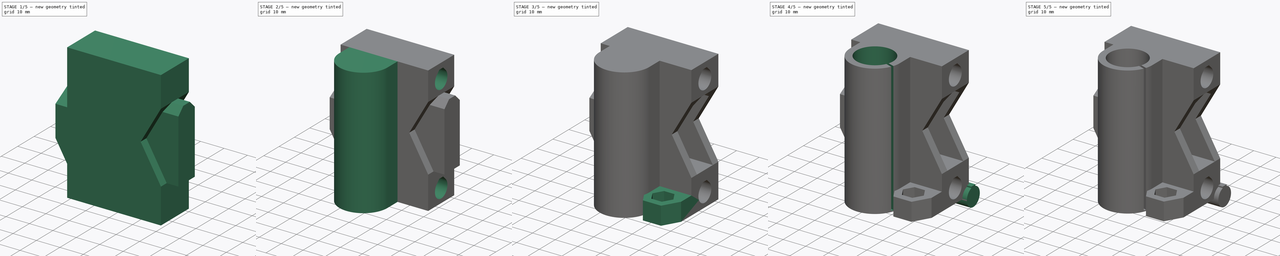
[diagram: build sequence overview — one tinted view per stage of 5, left to right]
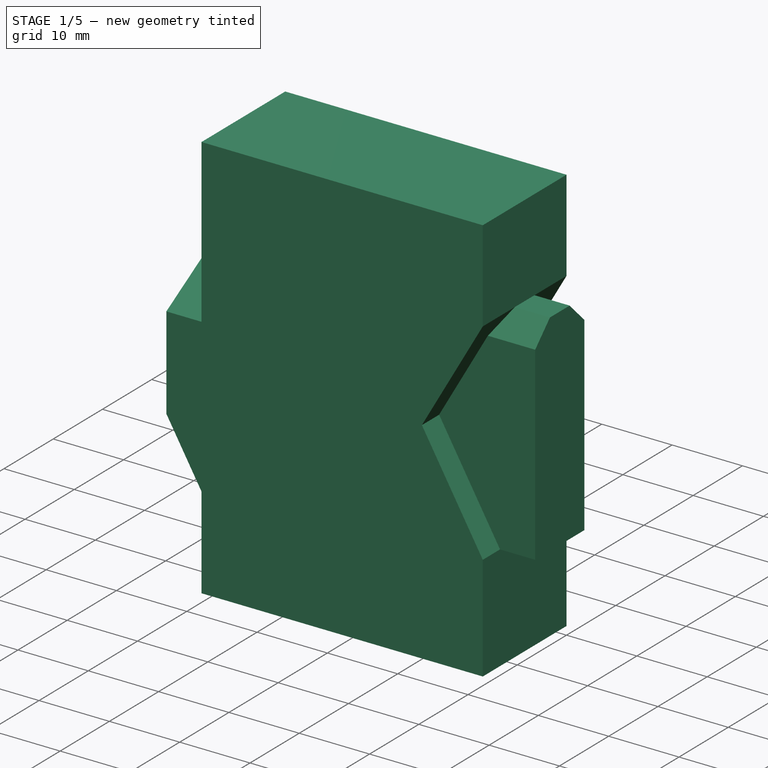
[diagram: stage 1 of 5 — iso view after this stage's code; geometry added in this stage tinted green]
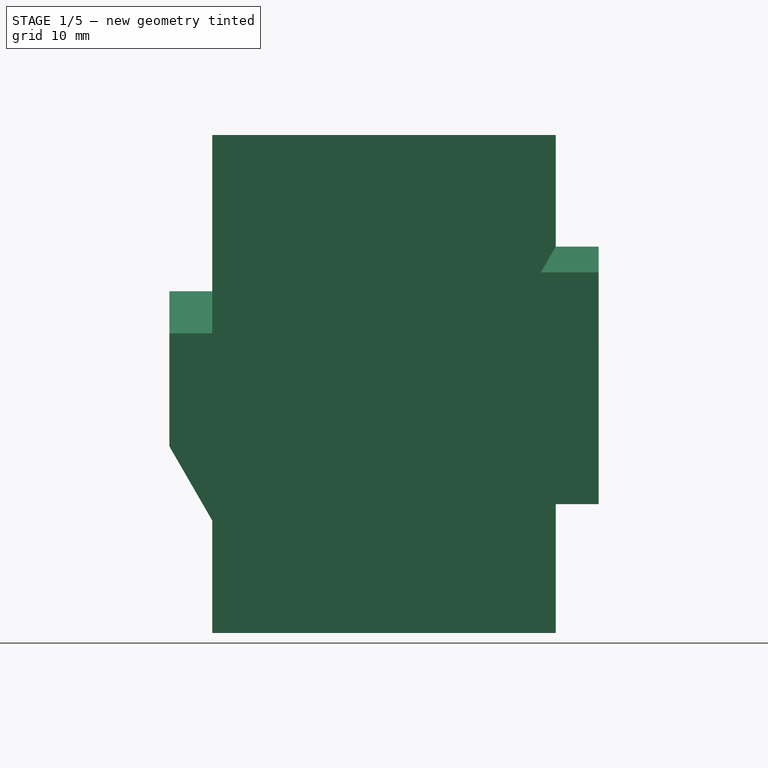
[diagram: stage 1 of 5 — front view after this stage's code; geometry added in this stage tinted green]
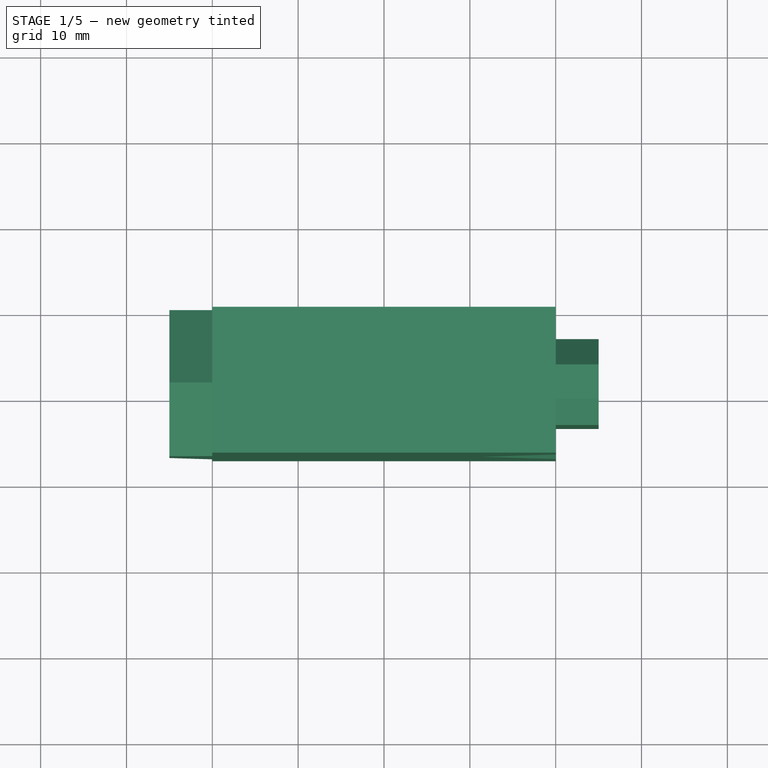
[diagram: stage 1 of 5 — top view after this stage's code; geometry added in this stage tinted green]
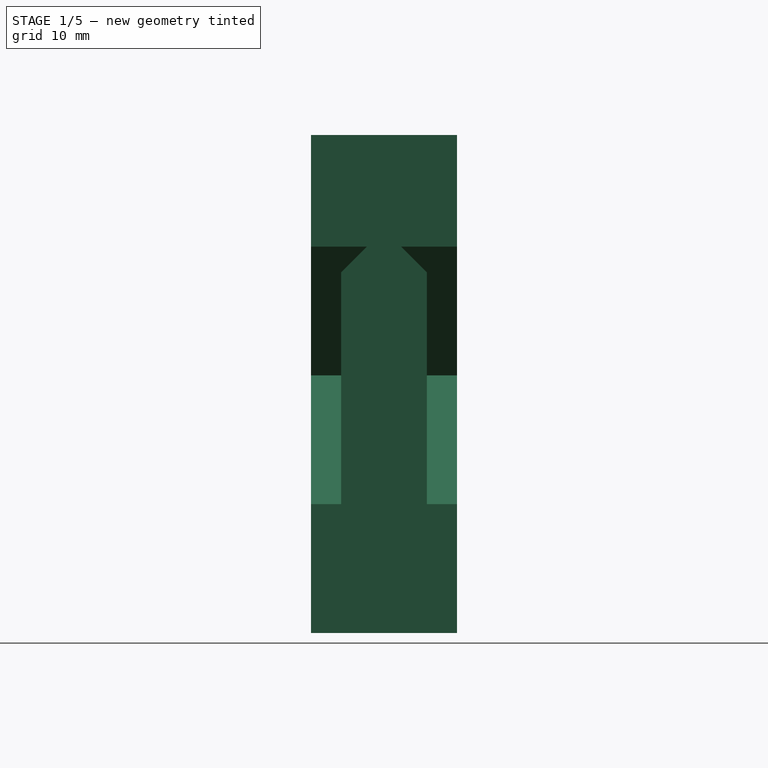
[diagram: stage 1 of 5 — right view after this stage's code; geometry added in this stage tinted green]
FCSTD DOCUMENT  (FreeCAD 0.14R3702 (Git))
Label: x-axis-idler-end
License: CC-BY 3.0
LicenseURL: http://creativecommons.org/licenses/by/3.0/
objects: Sketcher::SketchObject×13, PartDesign::Pocket×9, Part::Box×4, PartDesign::Pad×4, Part::Prism×2, Part::Chamfer×1, Part::Cut×1, Part::Feature×1
note: 48 computed .brp shape members not serialized (recipe doc carries the construction recipe); baked Part::Feature solids carry a one-line shape summary decoded from their .brp

FEATURE [Sketcher::SketchObject] Sketch  label="main-body-sketch"
  Placement = pos=(0,0,0) rot=(1,0,0;1.5708rad)
  sketch-geometry (11):
    g0: LineSegment StartX=0 StartY=0 StartZ=0 EndX=0 EndY=13.0797 EndZ=0
    g1: LineSegment StartX=0 StartY=13.0797 StartZ=0 EndX=-5 EndY=21.74 EndZ=0
    g2: LineSegment StartX=-5 StartY=21.74 StartZ=0 EndX=-5 EndY=39.8 EndZ=0
    g3: LineSegment StartX=-5 StartY=39.8 StartZ=0 EndX=0 EndY=39.8 EndZ=0
    g4: LineSegment StartX=0 StartY=39.8 StartZ=0 EndX=0 EndY=58 EndZ=0
    g5: LineSegment StartX=0 StartY=58 StartZ=0 EndX=40 EndY=58 EndZ=0
    g6: LineSegment StartX=40 StartY=58 StartZ=0 EndX=40 EndY=45 EndZ=0
    g7: LineSegment StartX=40 StartY=45 StartZ=0 EndX=31.3397 EndY=30 EndZ=0
    g8: LineSegment StartX=31.3397 StartY=30 StartZ=0 EndX=40 EndY=15 EndZ=0
    g9: LineSegment StartX=40 StartY=15 StartZ=0 EndX=40 EndY=0 EndZ=0
    g10: LineSegment StartX=40 StartY=0 StartZ=0 EndX=0 EndY=0 EndZ=0
  constraints (32):
    c: Coincident(g0,g1)
    c: Coincident(g1,g2)
    c: Coincident(g2,g3)
    c: Coincident(g3,g4)
    c: Coincident(g4,g5)
    c: Coincident(g5,g6)
    c: Coincident(g6,g7)
    c: Coincident(g7,g8)
    c: Coincident(g8,g9)
    c: Coincident(g9,g10)
    c: Coincident(g10,g-1)
    c: PointOnObject(g9,g-1)
    c: PointOnObject(g0,g-2)
    c: PointOnObject(g3,g-2)
    c: PointOnObject(g4,g-2)
    c: Horizontal(g3)
    c: Vertical(g2)
    c: Horizontal(g5)
    c: Vertical(g6)
    c: DistanceX(g10) = -40
    c: Vertical(g9)
    c: Coincident(g0,g-1)
    c: DistanceY(g2) = 18.06
    c: Angle(g1,g-2) = 2.61799
    c: DistanceY(g4) = 18.2
    c: DistanceY(g-1,g4) = 58
    c: DistanceY(g6) = -13
    c: DistanceY(g9) = -15
    c: Equal(g5,g10)
    c: Angle(g8,g10) = 1.0472
    c: DistanceY(g8,g7) = 15
    c: DistanceX(g0,g1) = -5
FEATURE [PartDesign::Pad] Pad  label="main-body"
  Length = 17
  Length2 = 100
  Placement = pos=(0,0,0) rot=(1,0,0;1.5708rad)
  Sketch = -> Sketch
  Type = 0
FEATURE [Sketcher::SketchObject] Sketch001  label="M6-nut-cutout-sketch"
  ExternalGeometry = -> [Pad]
  Placement = pos=(-5,0,0) rot=(0.707107,0,-0.707107;3.14159rad)
  Support = -> Pad [Face3]
  sketch-geometry (6):
    g0: LineSegment [constr] StartX=-39.8 StartY=8.5 StartZ=0 EndX=-21.74 EndY=8.5 EndZ=0
    g1: LineSegment StartX=-34.8925 StartY=17 StartZ=0 EndX=-39.8 EndY=8.5 EndZ=0
    g2: LineSegment StartX=-39.8 StartY=8.5 StartZ=0 EndX=-34.8925 EndY=0 EndZ=0
    g3: LineSegment StartX=-34.8925 StartY=17 StartZ=0 EndX=-42.8925 EndY=17 EndZ=0
    g4: LineSegment StartX=-42.8925 StartY=17 StartZ=0 EndX=-42.8925 EndY=0 EndZ=0
    g5: LineSegment StartX=-42.8925 StartY=0 StartZ=0 EndX=-34.8925 EndY=0 EndZ=0
  constraints (17):
    c: Coincident(g2,g1)
    c: Symmetric(g1,g2,g0)
    c: PointOnObject(g1,g0)
    c: PointOnObject(g1,g-3)
    c: Coincident(g0,g1)
    c: Symmetric(g-5,g-5,g0)
    c: PointOnObject(g0,g-5)
    c: PointOnObject(g0,g-4)
    c: Angle(g1,g-5) = 0.523599
    c: Coincident(g3,g4)
    c: Coincident(g4,g5)
    c: Horizontal(g5)
    c: Horizontal(g3)
    c: Vertical(g4)
    c: Coincident(g3,g1)
    c: Coincident(g5,g2)
    c: DistanceX(g3) = -8
FEATURE [PartDesign::Pocket] Pocket  label="M6-nut-cutout"
  Length = 5
  Placement = pos=(0,0,0) rot=(1,0,0;1.5708rad)
  Sketch = -> Sketch001
  Type = 0
FEATURE [Sketcher::SketchObject] Sketch011  label="inner-part-main-body-sketch"
  Placement = pos=(0,-3.5,0) rot=(1,0,0;1.5708rad)
  sketch-geometry (4):
    g0: LineSegment StartX=5 StartY=45 StartZ=0 EndX=45 EndY=45 EndZ=0
    g1: LineSegment StartX=45 StartY=45 StartZ=0 EndX=45 EndY=15 EndZ=0
    g2: LineSegment StartX=45 StartY=15 StartZ=0 EndX=5 EndY=15 EndZ=0
    g3: LineSegment StartX=5 StartY=15 StartZ=0 EndX=5 EndY=45 EndZ=0
  constraints (12):
    c: Coincident(g0,g1)
    c: Coincident(g1,g2)
    c: Coincident(g2,g3)
    c: Coincident(g3,g0)
    c: Horizontal(g0)
    c: Horizontal(g2)
    c: Vertical(g1)
    c: Vertical(g3)
    c: DistanceY(g-1,g2) = 15
    c: DistanceX(g-1,g2) = 5
    c: DistanceY(g1) = -30
    c: DistanceX(g0) = 40
FEATURE [PartDesign::Pad] Pad003  label="inner-part-main-body"
  Length = 10
  Length2 = 100
  Placement = pos=(0,-3.5,0) rot=(1,0,0;1.5708rad)
  Sketch = -> Sketch011
  Type = 0
FEATURE [Part::Chamfer] Chamfer  label="inner-part"
  Base = -> Pad003
  Edges = 2 edges r=3: [Edge3,Edge4]
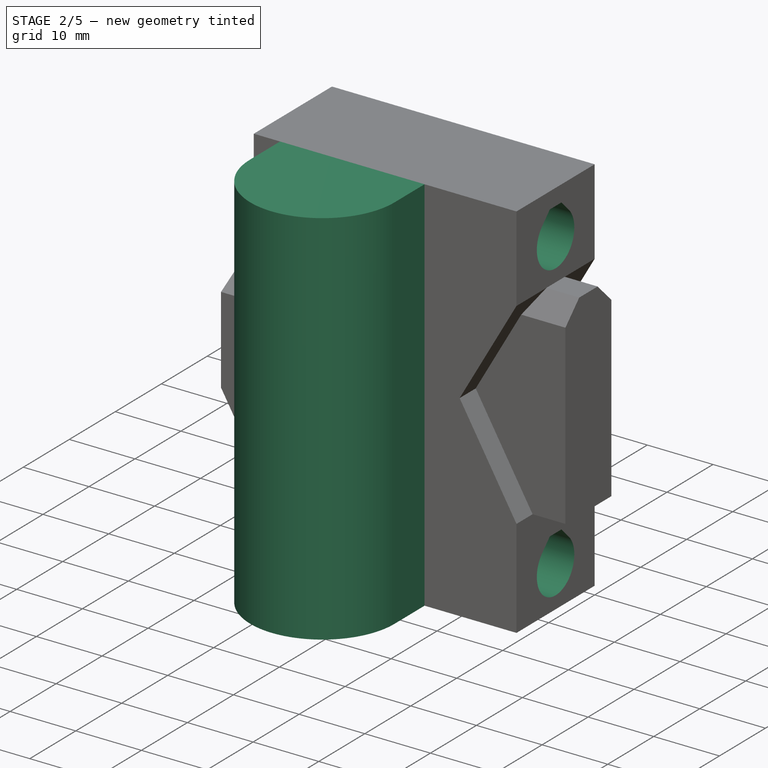
[diagram: stage 2 of 5 — iso view after this stage's code; geometry added in this stage tinted green]
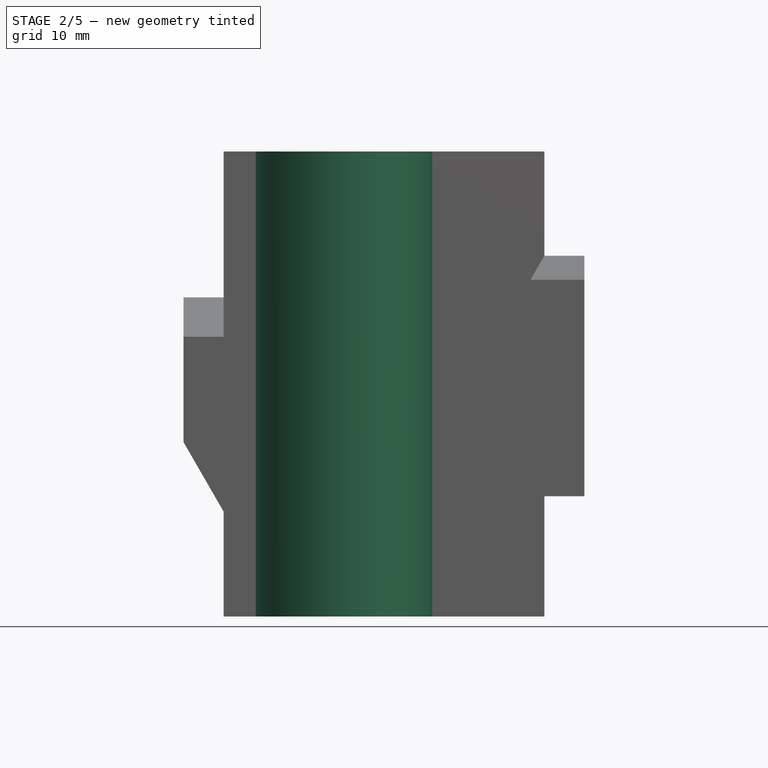
[diagram: stage 2 of 5 — front view after this stage's code; geometry added in this stage tinted green]
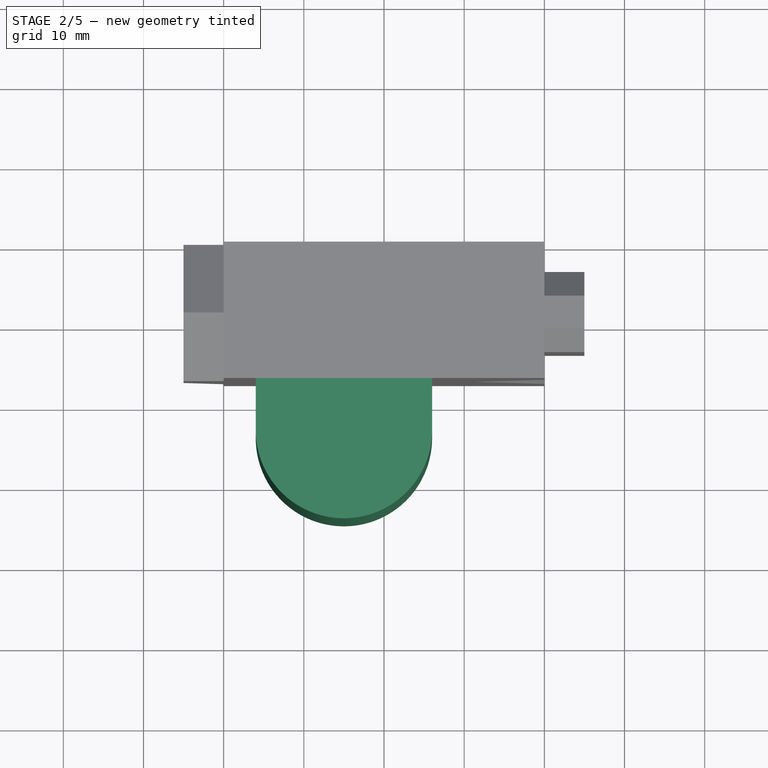
[diagram: stage 2 of 5 — top view after this stage's code; geometry added in this stage tinted green]
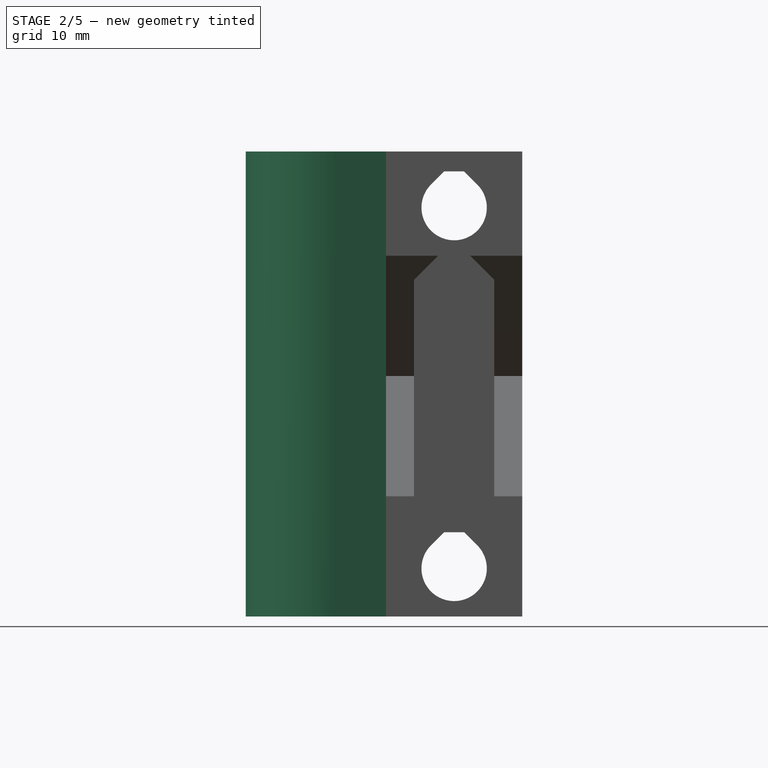
[diagram: stage 2 of 5 — right view after this stage's code; geometry added in this stage tinted green]
FEATURE [Sketcher::SketchObject] Sketch002  label="M6-nut-sketch"
  Placement = pos=(-5,0,0) rot=(0.707107,0,-0.707107;3.14159rad)
  Support = -> Pocket [Face7]
  sketch-geometry (9):
    g0: LineSegment StartX=-35.89 StartY=8.5 StartZ=0 EndX=-32.945 EndY=13.6009 EndZ=0
    g1: LineSegment StartX=-32.945 StartY=13.6009 StartZ=0 EndX=-27.055 EndY=13.6009 EndZ=0
    g2: LineSegment [constr] StartX=-30 StartY=13.6009 StartZ=0 EndX=-30 EndY=8.5 EndZ=0
    g3: LineSegment [constr] StartX=-35.89 StartY=8.5 StartZ=0 EndX=-30 EndY=8.5 EndZ=0
    g4: LineSegment [constr] StartX=-32.945 StartY=13.6009 StartZ=0 EndX=-30 EndY=8.5 EndZ=0
    g5: LineSegment StartX=-35.89 StartY=8.5 StartZ=0 EndX=-32.945 EndY=3.39911 EndZ=0
    g6: LineSegment StartX=-32.945 StartY=3.39911 StartZ=0 EndX=-27.055 EndY=3.39911 EndZ=0
    g7: LineSegment StartX=-27.055 StartY=3.39911 StartZ=0 EndX=-24.11 EndY=8.5 EndZ=0
    g8: LineSegment StartX=-24.11 StartY=8.5 StartZ=0 EndX=-27.055 EndY=13.6009 EndZ=0
  constraints (23):
    c: Coincident(g0,g1)
    c: Vertical(g2)
    c: Horizontal(g3)
    c: Coincident(g3,g2)
    c: Symmetric(g0,g1,g2)
    c: PointOnObject(g2,g1)
    c: Coincident(g3,g0)
    c: Coincident(g4,g2)
    c: Coincident(g4,g0)
    c: Angle(g4,g3) = 1.0472
    c: Equal(g3,g4)
    c: Coincident(g5,g6)
    c: Horizontal(g6)
    c: Coincident(g6,g7)
    c: Coincident(g7,g8)
    c: Coincident(g8,g1)
    c: Coincident(g5,g0)
    c: Symmetric(g7,g0,g2)
    c: Symmetric(g5,g0,g3)
    c: Symmetric(g6,g1,g3)
    c: DistanceX(g0,g7) = 11.78
    c: DistanceX(g2) = -30
    c: DistanceY(g2) = 8.5
FEATURE [PartDesign::Pocket] Pocket001  label="M6-nut"
  Length = 4
  Placement = pos=(0,0,0) rot=(1,0,0;1.5708rad)
  Sketch = -> Sketch002
  Type = 0
FEATURE [Sketcher::SketchObject] Sketch003  label="reprap-drill-1-sketch"
  Placement = pos=(0,0,0) rot=(0.707107,0,-0.707107;3.14159rad)
  Support = -> Pocket001 [Face12]
  sketch-geometry (7):
    g0: LineSegment [constr] StartX=-55.075 StartY=8.5 StartZ=0 EndX=-51 EndY=8.5 EndZ=0
    g1: LineSegment StartX=-55.5129 StartY=9.75 StartZ=0 EndX=-55.5129 EndY=7.25 EndZ=0
    g2: LineSegment [constr] StartX=-51 StartY=8.5 StartZ=0 EndX=-53.8815 EndY=11.3815 EndZ=0
    g3: LineSegment StartX=-55.5129 StartY=9.75 StartZ=0 EndX=-53.8815 EndY=11.3815 EndZ=0
    g4: LineSegment [constr] StartX=-53.8815 StartY=11.3815 StartZ=0 EndX=-53.8815 EndY=5.61854 EndZ=0
    g5: LineSegment StartX=-55.5129 StartY=7.25 StartZ=0 EndX=-53.8815 EndY=5.61854 EndZ=0
    g6: ArcOfCircle CenterX=-51 CenterY=8.5 CenterZ=0 NormalX=0 NormalY=0 NormalZ=1 Radius=4.075 StartAngle=3.92699 EndAngle=8.63938
  constraints (20):
    c: Horizontal(g0)
    c: Vertical(g1)
    c: Symmetric(g1,g1,g0)
    c: Coincident(g2,g0)
    c: Coincident(g1,g3)
    c: Symmetric(g4,g4,g0)
    c: DistanceX(g0) = 4.075
    c: Equal(g0,g2)
    c: Coincident(g2,g3)
    c: Coincident(g4,g2)
    c: Angle(g0,g3) = 0.785398
    c: Perpendicular(g2,g3)
    c: Coincident(g5,g4)
    c: Coincident(g1,g5)
    c: DistanceX(g-1,g0) = -51
    c: DistanceY(g-1,g0) = 8.5
    c: DistanceY(g1) = -2.5
    c: Coincident(g6,g0)
    c: Coincident(g6,g4)
    c: Coincident(g6,g2)
FEATURE [PartDesign::Pocket] Pocket002  label="reprap-drill-1"
  Length = 5
  Placement = pos=(0,0,0) rot=(1,0,0;1.5708rad)
  Sketch = -> Sketch003
  Type = 1
FEATURE [Sketcher::SketchObject] Sketch004  label="reprap-drill-2-sketch"
  Placement = pos=(0,0,0) rot=(0.707107,0,-0.707107;3.14159rad)
  Support = -> Pocket002 [Face1]
  sketch-geometry (7):
    g0: LineSegment [constr] StartX=-10.075 StartY=8.5 StartZ=0 EndX=-6 EndY=8.5 EndZ=0
    g1: LineSegment StartX=-10.5129 StartY=9.75 StartZ=0 EndX=-10.5129 EndY=7.25 EndZ=0
    g2: LineSegment [constr] StartX=-6 StartY=8.5 StartZ=0 EndX=-8.88146 EndY=11.3815 EndZ=0
    g3: LineSegment StartX=-10.5129 StartY=9.75 StartZ=0 EndX=-8.88146 EndY=11.3815 EndZ=0
    g4: LineSegment [constr] StartX=-8.88146 StartY=11.3815 StartZ=0 EndX=-8.88146 EndY=5.61854 EndZ=0
    g5: LineSegment StartX=-10.5129 StartY=7.25 StartZ=0 EndX=-8.88146 EndY=5.61854 EndZ=0
    g6: ArcOfCircle CenterX=-6 CenterY=8.5 CenterZ=0 NormalX=0 NormalY=0 NormalZ=1 Radius=4.075 StartAngle=3.92699 EndAngle=8.63938
  constraints (20):
    c: Horizontal(g0)
    c: Vertical(g1)
    c: Symmetric(g1,g1,g0)
    c: Coincident(g2,g0)
    c: Coincident(g1,g3)
    c: Symmetric(g4,g4,g0)
    c: DistanceX(g0) = 4.075
    c: Equal(g0,g2)
    c: Coincident(g2,g3)
    c: Coincident(g4,g2)
    c: Angle(g0,g3) = 0.785398
    c: Perpendicular(g2,g3)
    c: Coincident(g5,g4)
    c: Coincident(g1,g5)
    c: DistanceY(g-1,g0) = 8.5
    c: DistanceY(g1) = -2.5
    c: Coincident(g6,g0)
    c: Coincident(g6,g4)
    c: Coincident(g6,g2)
    c: DistanceX(g-1,g0) = -6
FEATURE [PartDesign::Pocket] Pocket003  label="reprap-drill-2"
  Length = 5
  Placement = pos=(0,0,0) rot=(1,0,0;1.5708rad)
  Sketch = -> Sketch004
  Type = 1
FEATURE [Sketcher::SketchObject] Sketch006  label="rod-guide-sketch"
  ExternalGeometry = -> [Pocket003]
  Placement = pos=(0,0,0) rot=(1,0,0;3.14159rad)
  Support = -> Pocket003 [Face2]
  sketch-geometry (5):
    g0: LineSegment StartX=4 StartY=23.5 StartZ=0 EndX=4 EndY=17 EndZ=0
    g1: LineSegment StartX=26 StartY=23.5 StartZ=0 EndX=26 EndY=17 EndZ=0
    g2: LineSegment StartX=4 StartY=17 StartZ=0 EndX=26 EndY=17 EndZ=0
    g3: LineSegment [constr] StartX=4 StartY=23.5 StartZ=0 EndX=26 EndY=23.5 EndZ=0
    g4: ArcOfCircle CenterX=15 CenterY=23.5 CenterZ=0 NormalX=0 NormalY=0 NormalZ=1 Radius=11 StartAngle=0 EndAngle=3.14159
  constraints (16):
    c: Vertical(g0)
    c: PointOnObject(g0,g-3)
    c: Vertical(g1)
    c: Horizontal(g2)
    c: Coincident(g2,g0)
    c: Coincident(g2,g1)
    c: DistanceX(g0,g1) = 22
    c: DistanceX(g0,g-3) = -4
    c: Equal(g0,g1)
    c: DistanceY(g0) = -6.5
    c: Horizontal(g3)
    c: Coincident(g3,g0)
    c: Coincident(g3,g1)
    c: PointOnObject(g4,g3)
    c: Coincident(g4,g0)
    c: Coincident(g4,g1)
FEATURE [PartDesign::Pad] Pad001  label="rod-guide"
  Length = 58
  Length2 = 100
  Placement = pos=(0,0,0) rot=(1,0,0;1.5708rad)
  Reversed = true
  Sketch = -> Sketch006
  Type = 0
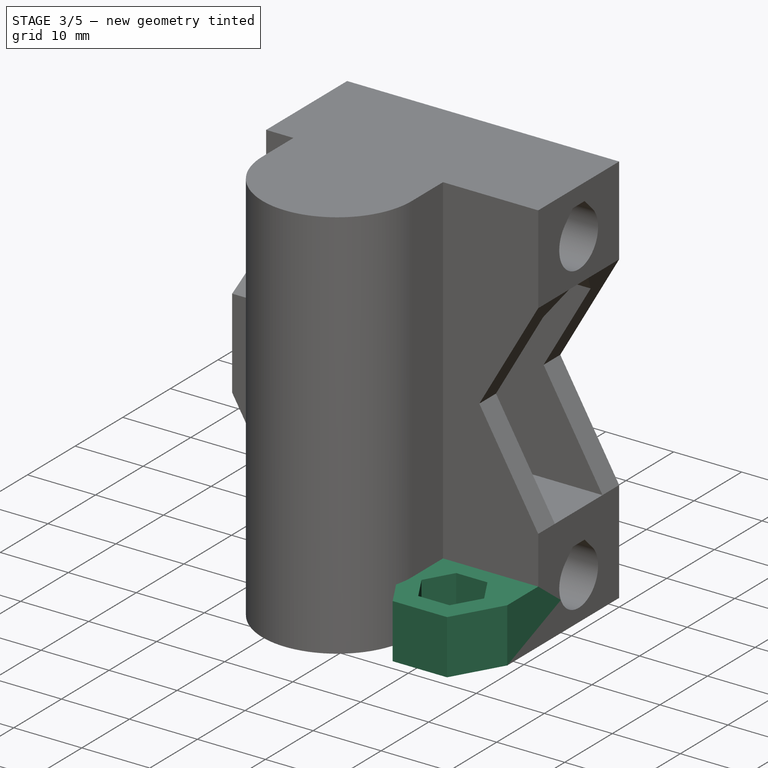
[diagram: stage 3 of 5 — iso view after this stage's code; geometry added in this stage tinted green]
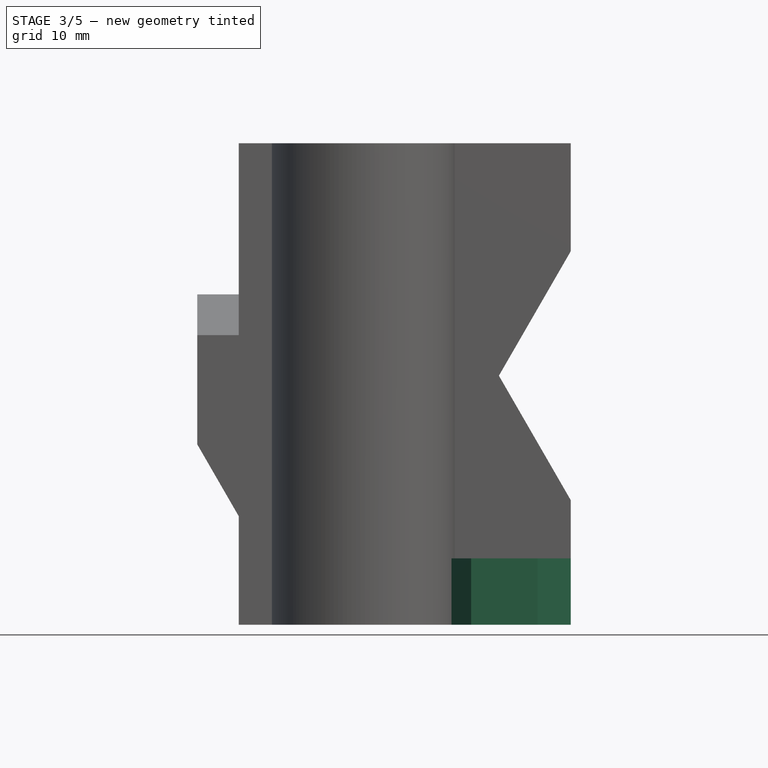
[diagram: stage 3 of 5 — front view after this stage's code; geometry added in this stage tinted green]
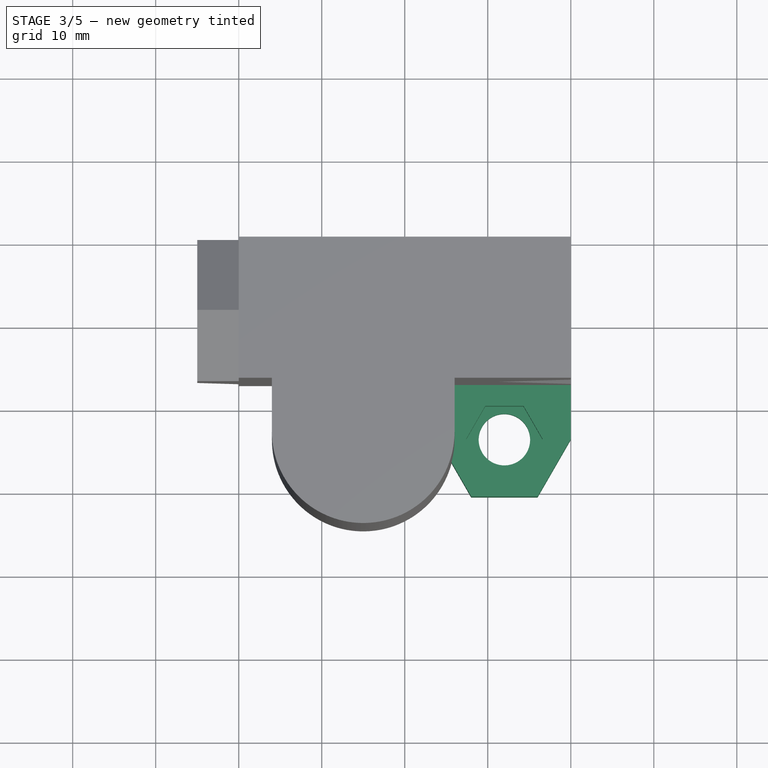
[diagram: stage 3 of 5 — top view after this stage's code; geometry added in this stage tinted green]
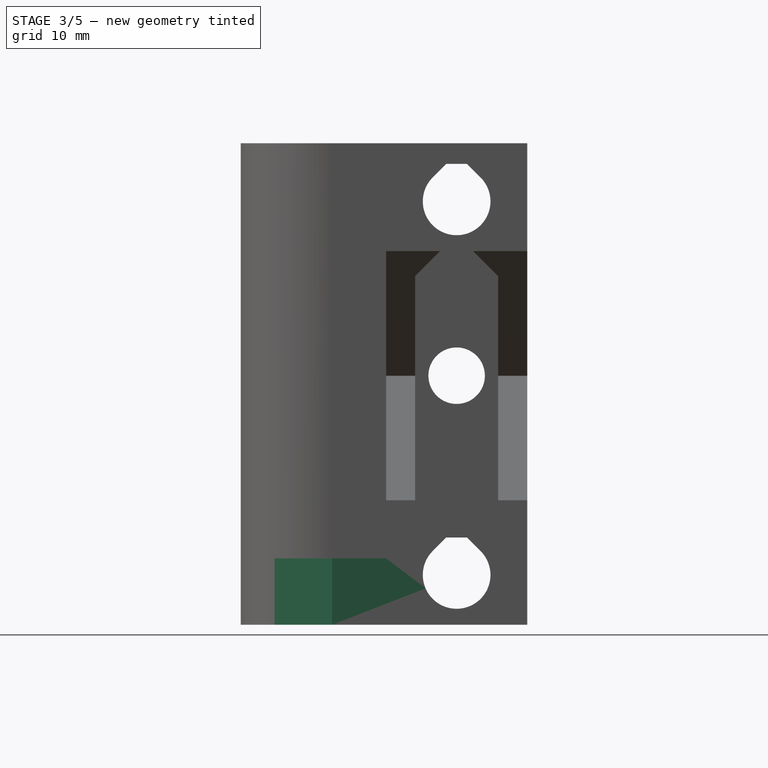
[diagram: stage 3 of 5 — right view after this stage's code; geometry added in this stage tinted green]
FEATURE [Sketcher::SketchObject] Sketch007  label="M5-nut-holder-sketch"
  ExternalGeometry = -> [Pad001]
  Placement = pos=(0,0,0) rot=(1,0,0;3.14159rad)
  Support = -> Pad001 [Face32]
  sketch-geometry (6):
    g0: LineSegment StartX=25.63 StartY=17 StartZ=0 EndX=25.63 EndY=26.32 EndZ=0
    g1: LineSegment StartX=25.63 StartY=26.32 StartZ=0 EndX=28 EndY=30.43 EndZ=0
    g2: LineSegment StartX=28 StartY=30.43 StartZ=0 EndX=36 EndY=30.43 EndZ=0
    g3: LineSegment StartX=36 StartY=30.43 StartZ=0 EndX=40 EndY=23.5 EndZ=0
    g4: LineSegment StartX=40 StartY=23.5 StartZ=0 EndX=40 EndY=17 EndZ=0
    g5: LineSegment StartX=40 StartY=17 StartZ=0 EndX=25.63 EndY=17 EndZ=0
  constraints (18):
    c: Coincident(g0,g1)
    c: Coincident(g1,g2)
    c: Coincident(g2,g3)
    c: Coincident(g3,g4)
    c: Coincident(g4,g5)
    c: Coincident(g5,g0)
    c: Horizontal(g5)
    c: Vertical(g4)
    c: Vertical(g0)
    c: Horizontal(g2)
    c: PointOnObject(g0,g-3)
    c: Coincident(g4,g-3)
    c: DistanceX(g5) = -14.37
    c: DistanceX(g2) = 8
    c: DistanceY(g0) = 9.32
    c: DistanceY(g1,g-3) = -13.43
    c: DistanceY(g4) = -6.5
    c: DistanceX(g3,g2) = -4
FEATURE [PartDesign::Pad] Pad002  label="M5-nut-holder"
  Length = 8
  Length2 = 100
  Placement = pos=(0,0,0) rot=(1,0,0;1.5708rad)
  Reversed = true
  Sketch = -> Sketch007
  Type = 0
FEATURE [Sketcher::SketchObject] Sketch009  label="M5-nut-sketch"
  ExternalGeometry = -> [Pad002]
  Placement = pos=(0,0,8) rot=(0,0,1;3.14159rad)
  Support = -> Pad002 [Face23]
  sketch-geometry (9):
    g0: LineSegment StartX=-36.6015 StartY=23.5 StartZ=0 EndX=-34.3007 EndY=27.485 EndZ=0
    g1: LineSegment StartX=-34.3007 StartY=27.485 StartZ=0 EndX=-29.6993 EndY=27.485 EndZ=0
    g2: LineSegment [constr] StartX=-32 StartY=27.485 StartZ=0 EndX=-32 EndY=23.5 EndZ=0
    g3: LineSegment [constr] StartX=-36.6015 StartY=23.5 StartZ=0 EndX=-32 EndY=23.5 EndZ=0
    g4: LineSegment [constr] StartX=-34.3007 StartY=27.485 StartZ=0 EndX=-32 EndY=23.5 EndZ=0
    g5: LineSegment StartX=-36.6015 StartY=23.5 StartZ=0 EndX=-34.3007 EndY=19.515 EndZ=0
    g6: LineSegment StartX=-34.3007 StartY=19.515 StartZ=0 EndX=-29.6993 EndY=19.515 EndZ=0
    g7: LineSegment StartX=-29.6993 StartY=19.515 StartZ=0 EndX=-27.3985 EndY=23.5 EndZ=0
    g8: LineSegment StartX=-27.3985 StartY=23.5 StartZ=0 EndX=-29.6993 EndY=27.485 EndZ=0
  constraints (23):
    c: Coincident(g0,g1)
    c: Vertical(g2)
    c: Horizontal(g3)
    c: Coincident(g3,g2)
    c: Symmetric(g0,g1,g2)
    c: PointOnObject(g2,g1)
    c: Coincident(g3,g0)
    c: Coincident(g4,g2)
    c: Coincident(g4,g0)
    c: Angle(g4,g3) = 1.0472
    c: Equal(g3,g4)
    c: Coincident(g5,g6)
    c: Horizontal(g6)
    c: Coincident(g6,g7)
    c: Coincident(g7,g8)
    c: Coincident(g8,g1)
    c: Coincident(g5,g0)
    c: Symmetric(g7,g0,g2)
    c: Symmetric(g5,g0,g3)
    c: Symmetric(g6,g1,g3)
    c: DistanceY(g6,g1) = 7.97
    c: DistanceY(g2,g-3) = -6.5
    c: DistanceX(g-3,g2) = 8
FEATURE [PartDesign::Pocket] Pocket004  label="M5-nut-cutout"
  Length = 5
  Placement = pos=(0,0,0) rot=(1,0,0;1.5708rad)
  Sketch = -> Sketch009
  Type = 0
FEATURE [Sketcher::SketchObject] Sketch010  label="M5-threaded-rod-drill-sketch"
  ExternalGeometry = -> [Pocket004]
  Placement = pos=(0,0,8) rot=(0,0,1;3.14159rad)
  Support = -> Pocket004 [Face2]
  sketch-geometry (1):
    g0: Circle CenterX=-32 CenterY=23.5 CenterZ=0 NormalX=0 NormalY=0 NormalZ=1 Radius=3.1
  constraints (3):
    c: DistanceX(g0,g-3) = -8
    c: DistanceY(g0,g-3) = -6.5
    c: Radius(g0) = 3.1
FEATURE [PartDesign::Pocket] Pocket005  label="M5-threaded-rod-drill"
  Length = 5
  Placement = pos=(0,0,0) rot=(1,0,0;1.5708rad)
  Sketch = -> Sketch010
  Type = 1
FEATURE [Part::Cut] Cut001  label="main-part-1"
  Base = -> Pocket005
  Tool = -> Chamfer
FEATURE [Sketcher::SketchObject] Sketch005  label="M6-bolt-drill-sketch"
  Placement = pos=(-1,0,0) rot=(-0.57735,0.57735,0.57735;4.18879rad)
  Support = -> Cut001 [Face54]
  sketch-geometry (1):
    g0: Circle CenterX=8.5 CenterY=30 CenterZ=0 NormalX=0 NormalY=0 NormalZ=1 Radius=3.4
  constraints (3):
    c: DistanceY(g-1,g0) = 30
    c: Radius(g0) = 3.4
    c: DistanceX(g-1,g0) = 8.5
FEATURE [PartDesign::Pocket] Pocket006  label="M6-bolt-drill"
  Length = 5
  Sketch = -> Sketch005
  Type = 1
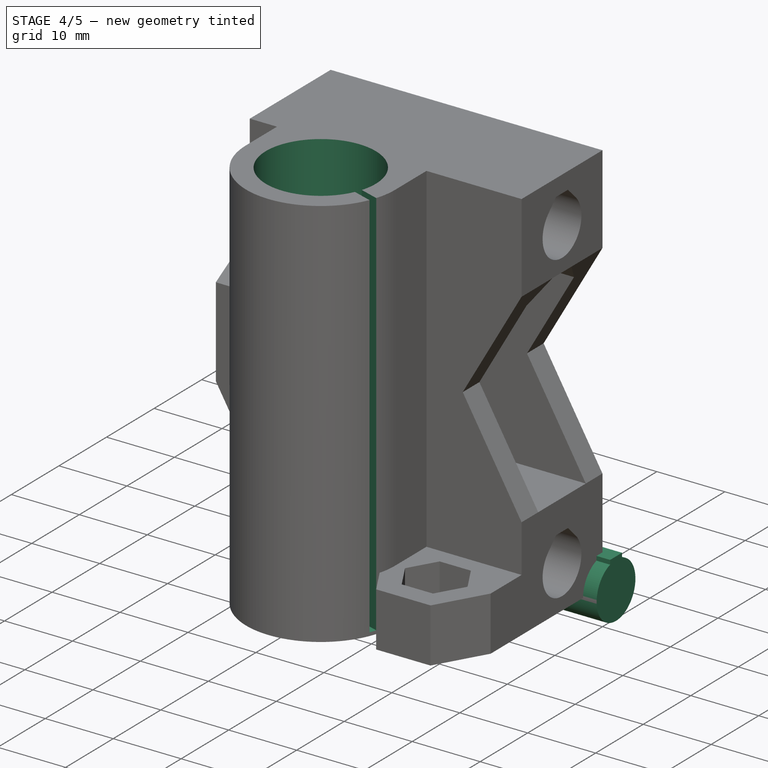
[diagram: stage 4 of 5 — iso view after this stage's code; geometry added in this stage tinted green]
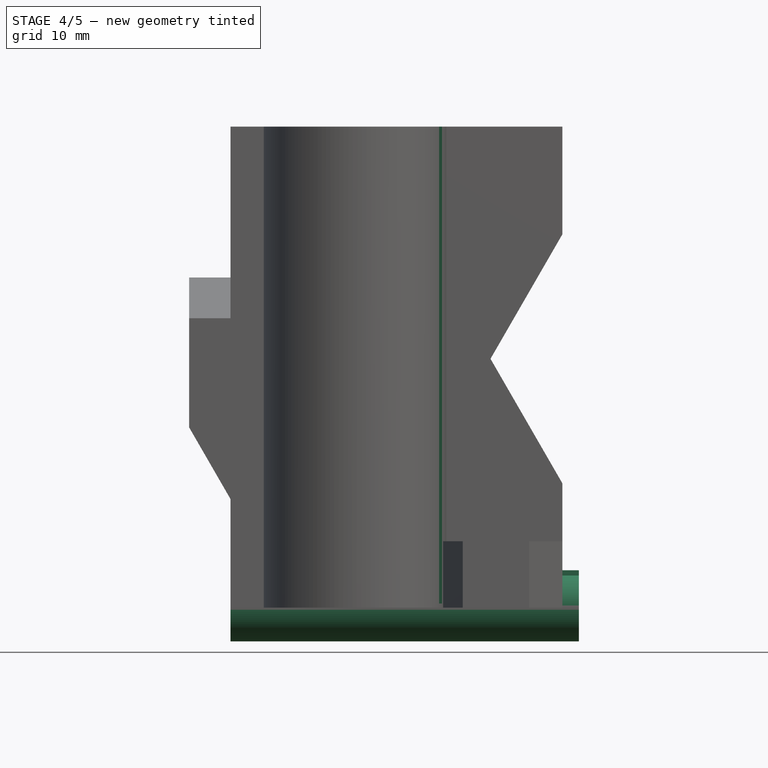
[diagram: stage 4 of 5 — front view after this stage's code; geometry added in this stage tinted green]
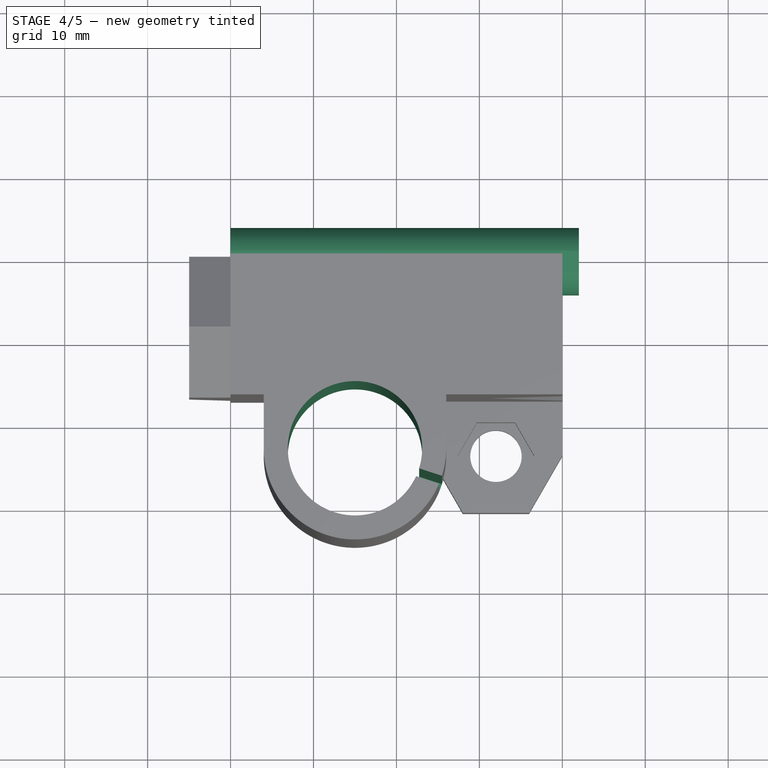
[diagram: stage 4 of 5 — top view after this stage's code; geometry added in this stage tinted green]
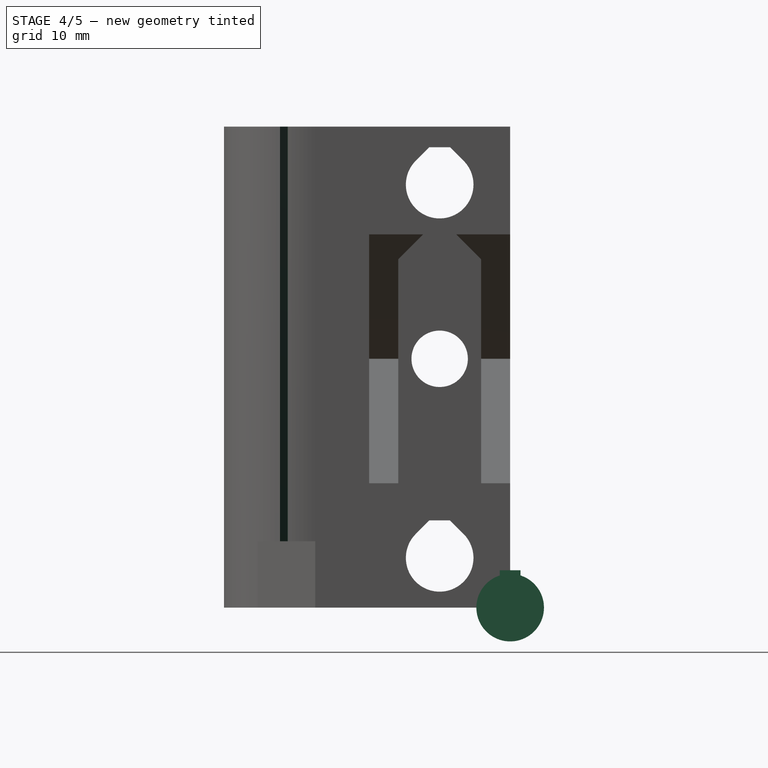
[diagram: stage 4 of 5 — right view after this stage's code; geometry added in this stage tinted green]
FEATURE [Part::Prism] prism004
  Circumradius = 4.075
  Height = 42
  Placement = pos=(0,0,0) rot=(0,1,0;1.5708rad)
  Polygon = 100
FEATURE [Part::Box] cube020
  Height = 4.51
  Length = 42
  Placement = pos=(0,-1.25,0) rot=(0,0,1;0rad)
  Width = 2.5
FEATURE [Sketcher::SketchObject] Sketch012  label="linear-bearing-drill-sketch"
  ExternalGeometry = -> [Pocket006]
  Placement = pos=(0,0,58) rot=(0,0,1;0rad)
  Support = -> Pocket006 [Face6]
  sketch-geometry (1):
    g0: Circle CenterX=15 CenterY=-23.5 CenterZ=0 NormalX=0 NormalY=0 NormalZ=1 Radius=8.1
  constraints (3):
    c: DistanceY(g-3,g0) = -6.5
    c: DistanceX(g-3,g0) = 11
    c: Radius(g0) = 8.1
FEATURE [PartDesign::Pocket] Pocket007  label="linear-bearing-drill"
  Length = 5
  Sketch = -> Sketch012
  Type = 1
FEATURE [Sketcher::SketchObject] Sketch013  label="rod-guide-slot-sketch"
  Placement = pos=(0,0,58) rot=(0,0,1;0rad)
  Support = -> Pocket007 [Face6]
  sketch-geometry (4):
    g0: LineSegment StartX=22.1276 StartY=-25.7274 StartZ=0 EndX=25.6276 EndY=-26.8646 EndZ=0
    g1: LineSegment StartX=22.1276 StartY=-26.7774 StartZ=0 EndX=25.6276 EndY=-27.9146 EndZ=0
    g2: LineSegment StartX=22.1276 StartY=-25.7274 StartZ=0 EndX=22.1276 EndY=-26.7774 EndZ=0
    g3: LineSegment StartX=25.6276 StartY=-26.8646 StartZ=0 EndX=25.6276 EndY=-27.9146 EndZ=0
  constraints (13):
    c: Parallel(g0,g1)
    c: Equal(g0,g1)
    c: Coincident(g2,g0)
    c: Vertical(g2)
    c: Coincident(g1,g2)
    c: Coincident(g3,g0)
    c: Coincident(g3,g1)
    c: Equal(g2,g3)
    c: Angle(g-1,g0) = 2.82743
    c: DistanceY(g3) = -1.05
    c: DistanceX(g0) = 3.5
    c: DistanceX(g0) = 22.1276
    c: DistanceY(g0) = -25.7274
FEATURE [PartDesign::Pocket] Pocket008  label="rod-guide-slot"
  Length = 57.5
  Sketch = -> Sketch013
  Type = 0
FEATURE [Part::Feature] Pocket008001  label="x-end-idler-final"
  shape: bbox 45 x 34.5 x 58 mm, 59 faces (baked)
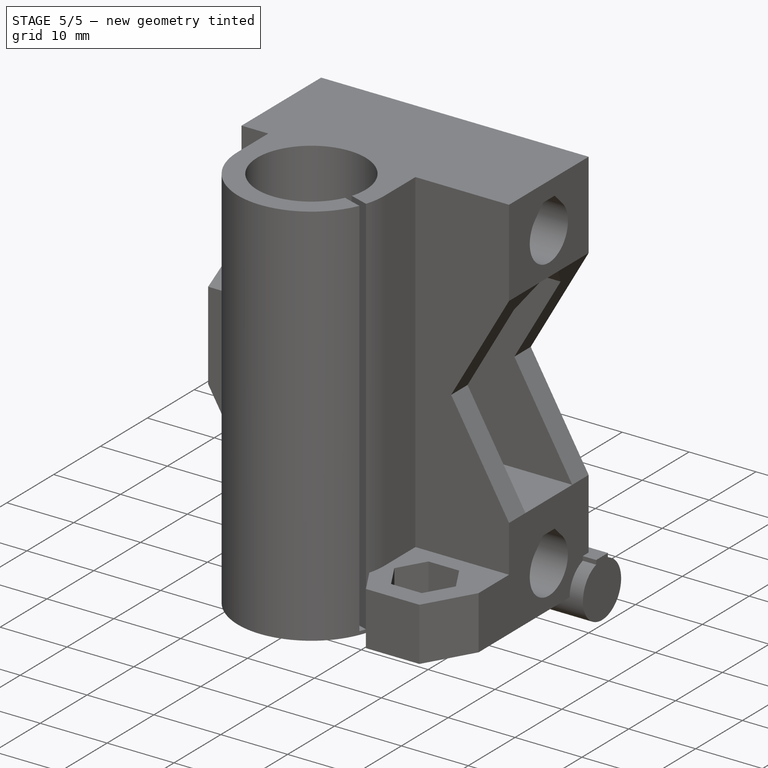
[diagram: stage 5 of 5 — iso view after this stage's code; geometry added in this stage tinted green]
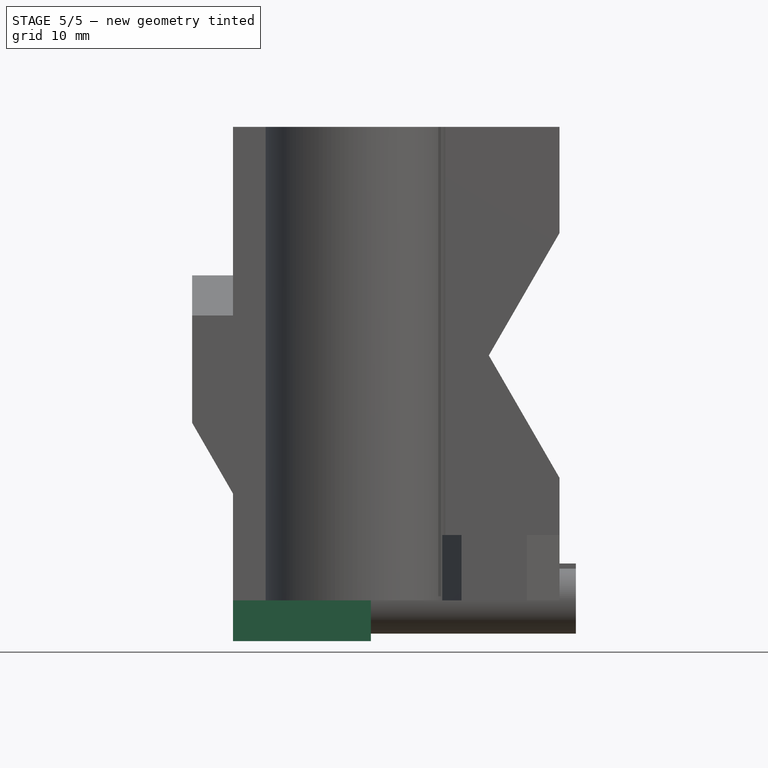
[diagram: stage 5 of 5 — front view after this stage's code; geometry added in this stage tinted green]
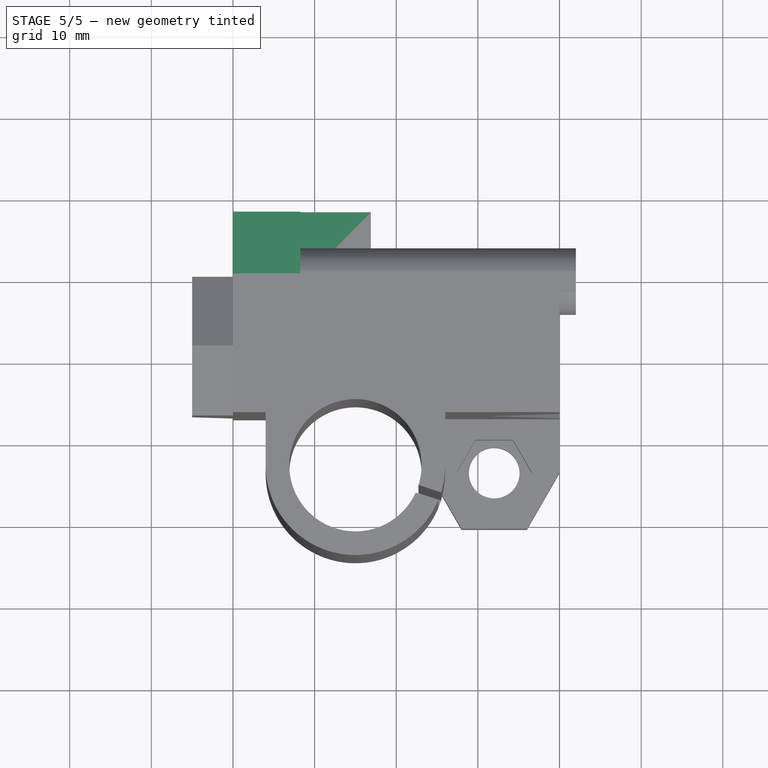
[diagram: stage 5 of 5 — top view after this stage's code; geometry added in this stage tinted green]
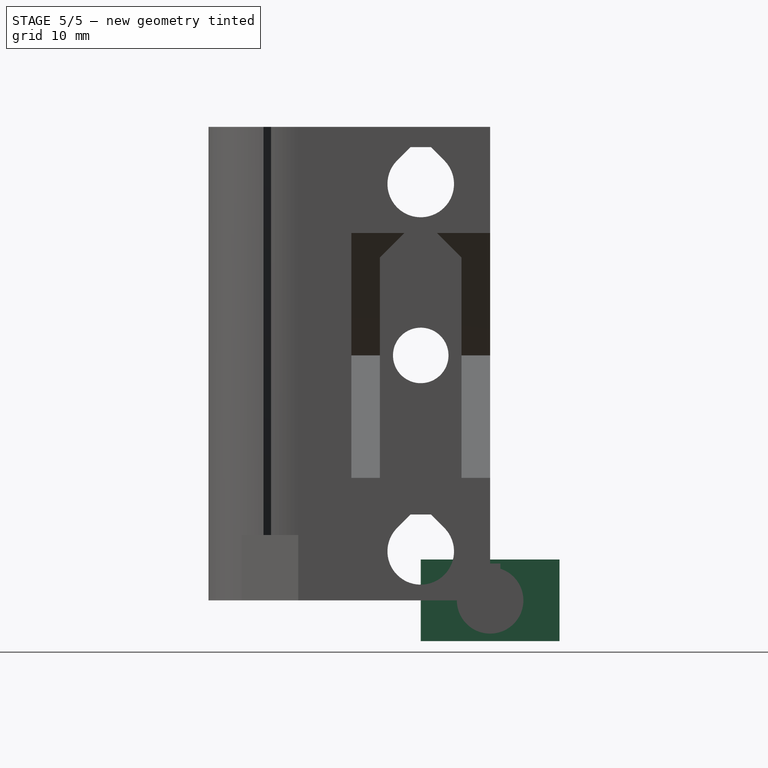
[diagram: stage 5 of 5 — right view after this stage's code; geometry added in this stage tinted green]
FEATURE [Part::Box] cube014
  Height = 5
  Length = 8.24
  Placement = pos=(0,-8.5,0) rot=(0,0,1;0rad)
  Width = 17
FEATURE [Part::Box] cube015
  Height = 5
  Length = 16.9
  Placement = pos=(0,-8.5,-5) rot=(0,0,1;0rad)
  Width = 17
FEATURE [Part::Prism] prism003
  Circumradius = 4.075
  Height = 42
  Placement = pos=(0,0,0) rot=(0,1,0;1.5708rad)
  Polygon = 100
FEATURE [Part::Box] cube019
  Height = 4.51
  Length = 42
  Placement = pos=(0,-1.25,0) rot=(0,0,1;0rad)
  Width = 2.5
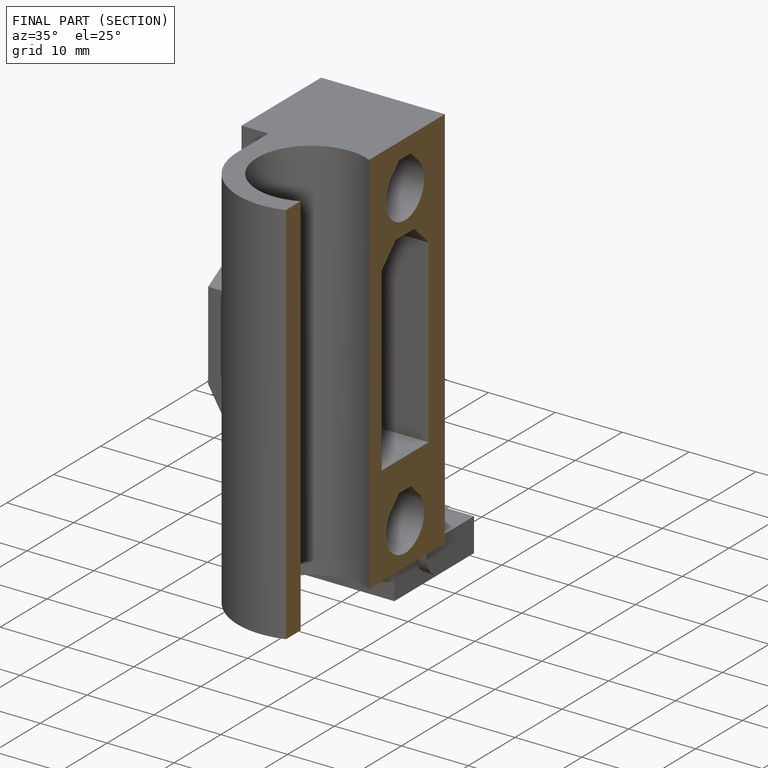
[diagram: finished part — half-section view (interior)]
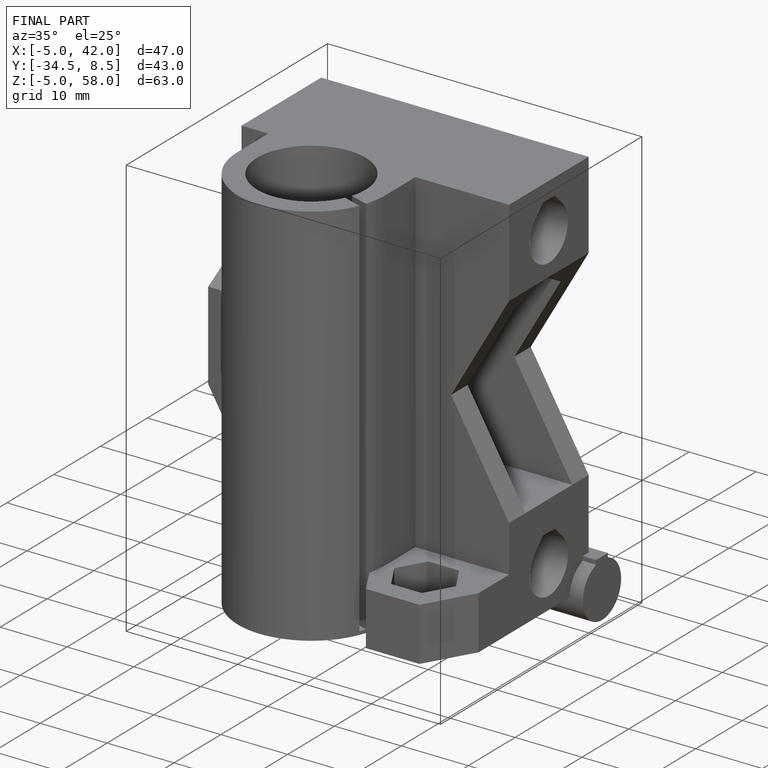
[diagram: finished part — iso view with bounding-box wireframe]
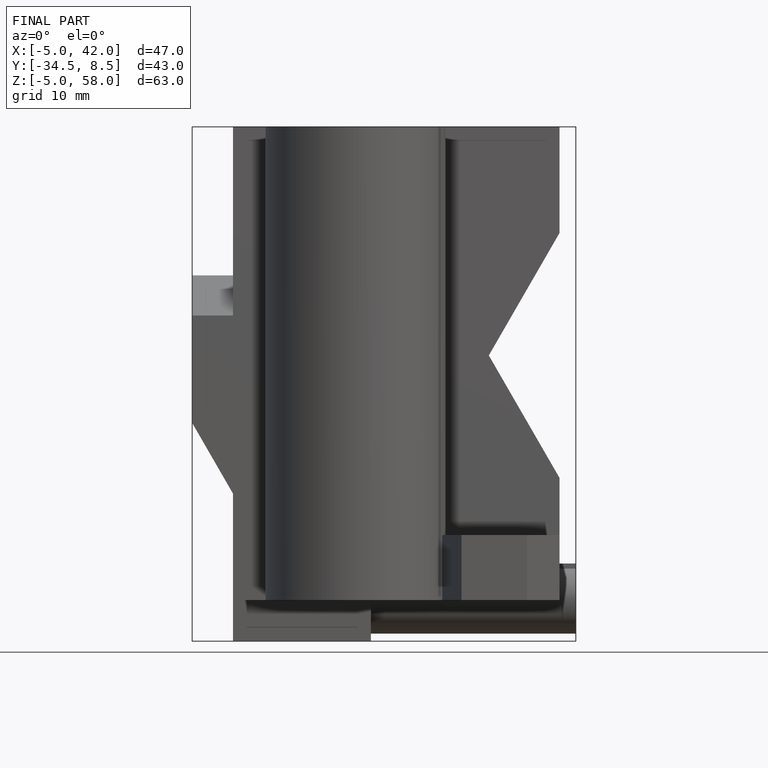
[diagram: finished part — front view with bounding-box wireframe]
